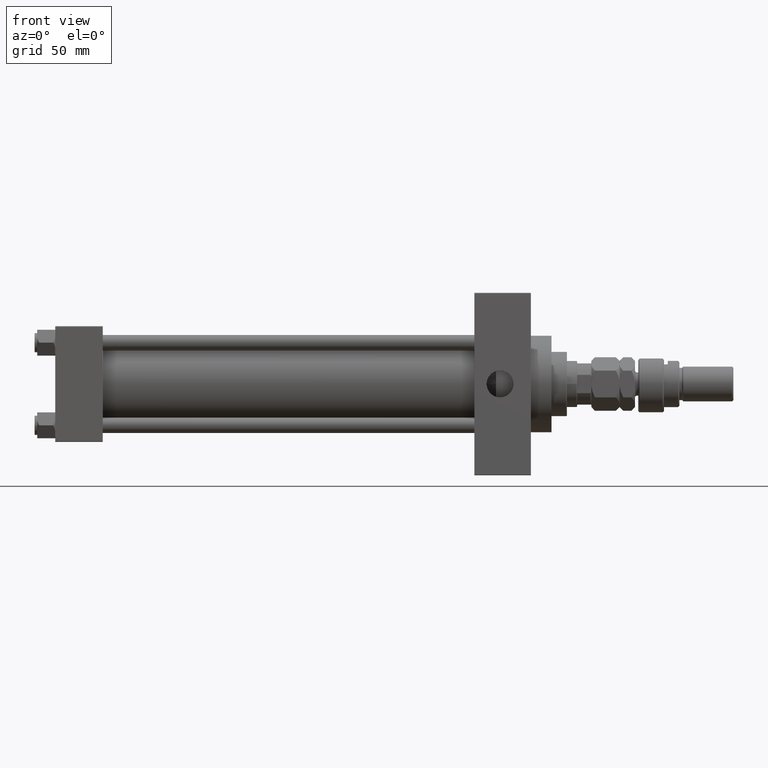
[diagram: clean part render]
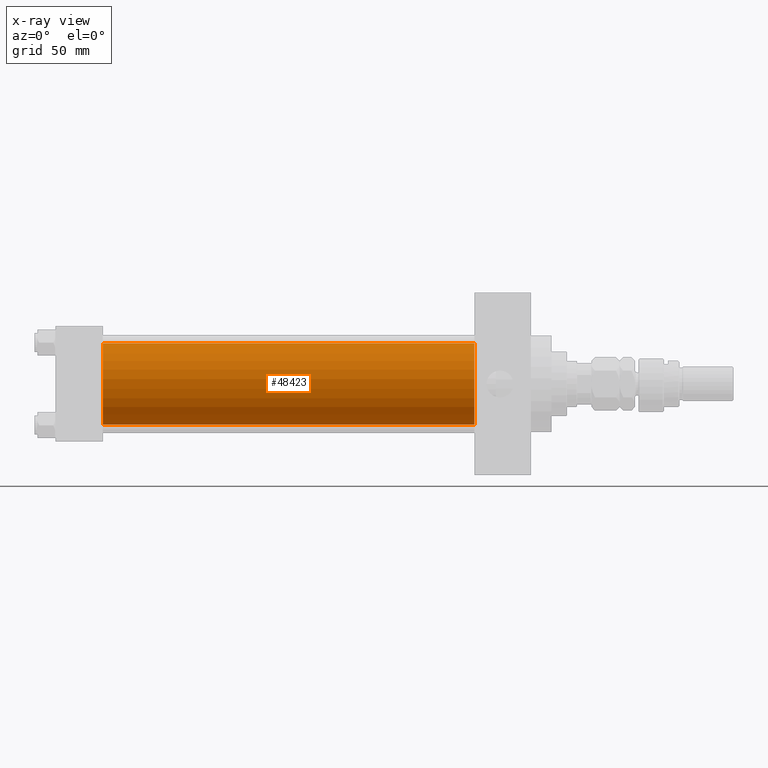
[diagram: x-ray — body ghosted, one internal face saturated and labeled with its STEP entity id]
A machine part, front view, then the same camera in x-ray: the body is ghosted and one INTERNAL B-rep face — a face not visible from any outside direction — is saturated and labeled: STEP entity #48423.
In plain terms, the highlighted cylindrical surface (partial cylindrical patch) has radius 31.5 mm, axis along (-1, -0, -0).
Its self-contained STEP definition (entity closure, byte-faithful):
#133 = DIRECTION ( 'NONE',  ( 0.000000000000000000, 0.000000000000000000, 1.000000000000000000 ) ) ;
#1873 = EDGE_CURVE ( 'NONE', #27668, #9765, #25364, .T. ) ;
#3452 = ORIENTED_EDGE ( 'NONE', *, *, #39684, .F. ) ;
#4600 = EDGE_LOOP ( 'NONE', ( #21249, #31190, #3452, #41379 ) ) ;
#4829 = DIRECTION ( 'NONE',  ( 1.000000000000000000, 0.000000000000000000, 0.000000000000000000 ) ) ;
#6039 = CARTESIAN_POINT ( 'NONE',  ( 325.9999999999999432, -2.602085213965210642E-15, 31.50000000000000000 ) ) ;
#6542 = AXIS2_PLACEMENT_3D ( 'NONE', #31052, #4829, #11700 ) ;
#9129 = CARTESIAN_POINT ( 'NONE',  ( 37.00000000000000000, 1.255552203348951850E-15, -31.50000000000000000 ) ) ;
#9765 = VERTEX_POINT ( 'NONE', #48670 ) ;
#9977 = AXIS2_PLACEMENT_3D ( 'NONE', #26571, #27075, #133 ) ;
#11700 = DIRECTION ( 'NONE',  ( 0.000000000000000000, 0.000000000000000000, -1.000000000000000000 ) ) ;
#17588 = EDGE_CURVE ( 'NONE', #40259, #33622, #21426, .T. ) ;
#19429 = FACE_OUTER_BOUND ( 'NONE', #4600, .T. ) ;
#19774 = CIRCLE ( 'NONE', #23004, 31.50000000000000000 ) ;
#21249 = ORIENTED_EDGE ( 'NONE', *, *, #49100, .T. ) ;
#21426 = LINE ( 'NONE', #44847, #32528 ) ;
#23004 = AXIS2_PLACEMENT_3D ( 'NONE', #23318, #31978, #47499 ) ;
#23318 = CARTESIAN_POINT ( 'NONE',  ( 325.9999999999999432, -2.602085213965210642E-15, 0.000000000000000000 ) ) ;
#23508 = CYLINDRICAL_SURFACE ( 'NONE', #9977, 31.50000000000000000 ) ;
#25364 = LINE ( 'NONE', #6039, #41879 ) ;
#26571 = CARTESIAN_POINT ( 'NONE',  ( 325.9999999999999432, -2.602085213965210642E-15, 0.000000000000000000 ) ) ;
#27075 = DIRECTION ( 'NONE',  ( -1.000000000000000000, -0.000000000000000000, -0.000000000000000000 ) ) ;
#27668 = VERTEX_POINT ( 'NONE', #29822 ) ;
#28481 = CIRCLE ( 'NONE', #6542, 31.50000000000000000 ) ;
#29822 = CARTESIAN_POINT ( 'NONE',  ( 325.9999999999999432, -2.602085213965210642E-15, 31.50000000000000000 ) ) ;
#31052 = CARTESIAN_POINT ( 'NONE',  ( 37.00000000000000000, -2.602085213965210642E-15, 0.000000000000000000 ) ) ;
#31190 = ORIENTED_EDGE ( 'NONE', *, *, #17588, .T. ) ;
#31370 = CARTESIAN_POINT ( 'NONE',  ( 325.9999999999999432, 1.255552203348951850E-15, -31.50000000000000000 ) ) ;
#31978 = DIRECTION ( 'NONE',  ( 1.000000000000000000, 0.000000000000000000, 0.000000000000000000 ) ) ;
#32528 = VECTOR ( 'NONE', #33913, 1000.000000000000000 ) ;
#33622 = VERTEX_POINT ( 'NONE', #9129 ) ;
#33913 = DIRECTION ( 'NONE',  ( -1.000000000000000000, -0.000000000000000000, -0.000000000000000000 ) ) ;
#39684 = EDGE_CURVE ( 'NONE', #9765, #33622, #28481, .T. ) ;
#40259 = VERTEX_POINT ( 'NONE', #31370 ) ;
#41379 = ORIENTED_EDGE ( 'NONE', *, *, #1873, .F. ) ;
#41879 = VECTOR ( 'NONE', #47124, 1000.000000000000000 ) ;
#44847 = CARTESIAN_POINT ( 'NONE',  ( 325.9999999999999432, 1.255552203348951850E-15, -31.50000000000000000 ) ) ;
#47124 = DIRECTION ( 'NONE',  ( -1.000000000000000000, -0.000000000000000000, -0.000000000000000000 ) ) ;
#47499 = DIRECTION ( 'NONE',  ( 0.000000000000000000, 0.000000000000000000, -1.000000000000000000 ) ) ;
#48423 = ADVANCED_FACE ( 'NONE', ( #19429 ), #23508, .F. ) ;
#48670 = CARTESIAN_POINT ( 'NONE',  ( 37.00000000000000000, -2.602085213965210642E-15, 31.50000000000000000 ) ) ;
#49100 = EDGE_CURVE ( 'NONE', #27668, #40259, #19774, .T. ) ;